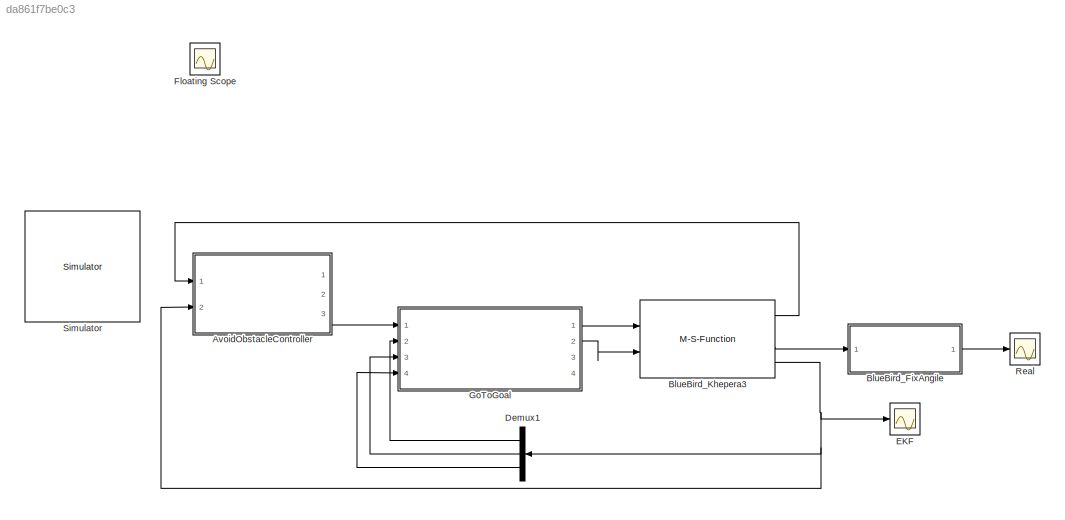
MODEL slx_da861f7be0c3
KIND model
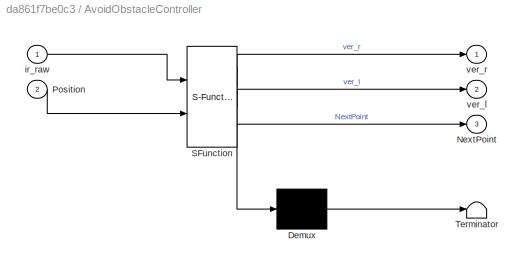
BLOCK [SubSystem] AvoidObstacleController
  ErrorFcn = Stateflow.Translate.translate
  PermitHierarchicalResolution = ExplicitOnly
  Ports = [2, 3]
  RequestExecContextInheritance = off
  SFBlockType = MATLAB Function
  TreatAsAtomicUnit = on
BLOCK [Demux] AvoidObstacleController/ Demux 
  Outputs = 1
  Ports = [1, 1]
BLOCK [S-Function] AvoidObstacleController/ SFunction 
  EnableBusSupport = on
  FunctionName = sf_sfun
  PortCounts = [2 4]
  Ports = [2, 4]
  Tag = Stateflow S-Function Show_AvoidObstacle_PrintFromOb 2
BLOCK [Terminator] AvoidObstacleController/ Terminator 
BLOCK [Outport] AvoidObstacleController/NextPoint
  IconDisplay = Port number
  Port = 3
BLOCK [Inport] AvoidObstacleController/Position
  IconDisplay = Port number
  Port = 2
BLOCK [Inport] AvoidObstacleController/ir_raw
  IconDisplay = Port number
BLOCK [Outport] AvoidObstacleController/ver_l
  IconDisplay = Port number
  Port = 2
BLOCK [Outport] AvoidObstacleController/ver_r
  IconDisplay = Port number
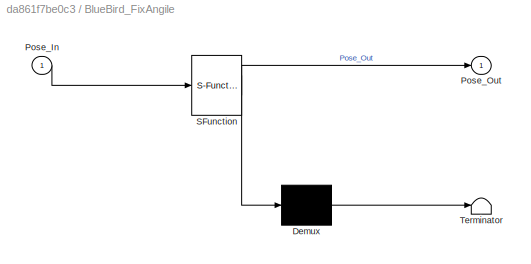
BLOCK [SubSystem] BlueBird_FixAngile
  ErrorFcn = Stateflow.Translate.translate
  PermitHierarchicalResolution = ExplicitOnly
  Ports = [1, 1]
  RequestExecContextInheritance = off
  SFBlockType = MATLAB Function
  TreatAsAtomicUnit = on
BLOCK [Demux] BlueBird_FixAngile/ Demux 
  Outputs = 1
  Ports = [1, 1]
BLOCK [S-Function] BlueBird_FixAngile/ SFunction 
  EnableBusSupport = on
  FunctionName = sf_sfun
  PortCounts = [1 2]
  Ports = [1, 2]
  Tag = Stateflow S-Function Show_AvoidObstacle_PrintFromOb 4
BLOCK [Terminator] BlueBird_FixAngile/ Terminator 
BLOCK [Inport] BlueBird_FixAngile/Pose_In
  IconDisplay = Port number
BLOCK [Outport] BlueBird_FixAngile/Pose_Out
  IconDisplay = Port number
BLOCK [M-S-Function] BlueBird_Khepera3
  AncestorBlock = simiam/Khepera III
  FunctionName = msfun_khepera3_WithPosition
  Parameters = x_0,y_0,theta_0,ShowObservation
  Ports = [2, 4]
BLOCK [Demux] Demux1
  DisplayOption = bar
  Outputs = 3
  Ports = [1, 3]
BLOCK [Scope] EKF
  DataFormat = StructureWithTime
  Floating = off
  NumInputPorts = 1
  Ports = [1]
  SampleTime = 0
  SaveName = ScopeData2
  ShowLegends = off
  YMax = 3.5
  YMin = -3.5
BLOCK [Scope] Floating Scope
  DataFormat = StructureWithTime
  Floating = on
  IOType = viewer
  NumInputPorts = 1
  Ports = []
  SampleTime = 0
  ShowLegends = off
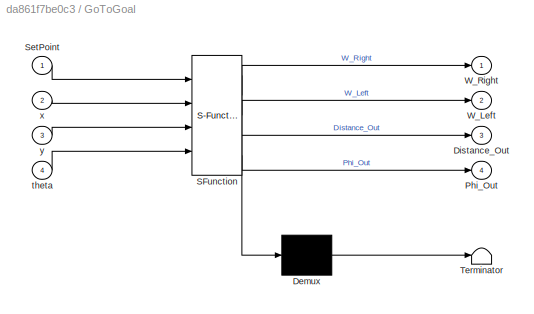
BLOCK [SubSystem] GoToGoal
  ErrorFcn = Stateflow.Translate.translate
  PermitHierarchicalResolution = ExplicitOnly
  Ports = [4, 4]
  RequestExecContextInheritance = off
  SFBlockType = MATLAB Function
  TreatAsAtomicUnit = on
BLOCK [Demux] GoToGoal/ Demux 
  Outputs = 1
  Ports = [1, 1]
BLOCK [S-Function] GoToGoal/ SFunction 
  EnableBusSupport = on
  FunctionName = sf_sfun
  PortCounts = [4 5]
  Ports = [4, 5]
  Tag = Stateflow S-Function Show_AvoidObstacle_PrintFromOb 1
BLOCK [Terminator] GoToGoal/ Terminator 
BLOCK [Outport] GoToGoal/Distance_Out
  IconDisplay = Port number
  Port = 3
BLOCK [Outport] GoToGoal/Phi_Out
  IconDisplay = Port number
  Port = 4
BLOCK [Inport] GoToGoal/SetPoint
  IconDisplay = Port number
BLOCK [Outport] GoToGoal/W_Left
  IconDisplay = Port number
  Port = 2
BLOCK [Outport] GoToGoal/W_Right
  IconDisplay = Port number
BLOCK [Inport] GoToGoal/theta
  IconDisplay = Port number
  Port = 4
BLOCK [Inport] GoToGoal/x
  IconDisplay = Port number
  Port = 2
BLOCK [Inport] GoToGoal/y
  IconDisplay = Port number
  Port = 3
BLOCK [Scope] Real
  DataFormat = StructureWithTime
  Floating = off
  NumInputPorts = 1
  Ports = [1]
  SampleTime = 0
  SaveName = ScopeData1
  ShowLegends = off
  YMax = 3.5
  YMin = -3.5
BLOCK [Reference] Simulator  REF=KSim/Simulator
  Ports = []
  Priority = 1
  SourceBlock = KSim/Simulator
  SourceType = Simulator
LINE AvoidObstacleController:3 -> GoToGoal:1
LINE BlueBird_FixAngile:1 -> Real:1
LINE BlueBird_Khepera3:1 -> AvoidObstacleController:1
LINE BlueBird_Khepera3:3 -> BlueBird_FixAngile:1
NET BlueBird_Khepera3:4 -> AvoidObstacleController:2, Demux1:1, EKF:1
LINE Demux1:1 -> GoToGoal:2
LINE Demux1:2 -> GoToGoal:3
LINE Demux1:3 -> GoToGoal:4
LINE GoToGoal:1 -> BlueBird_Khepera3:1
LINE GoToGoal:2 -> BlueBird_Khepera3:2
note: NET lines group one-source signal fan-out (src -> all destinations, sorted); 1:1 wires keep LINE
